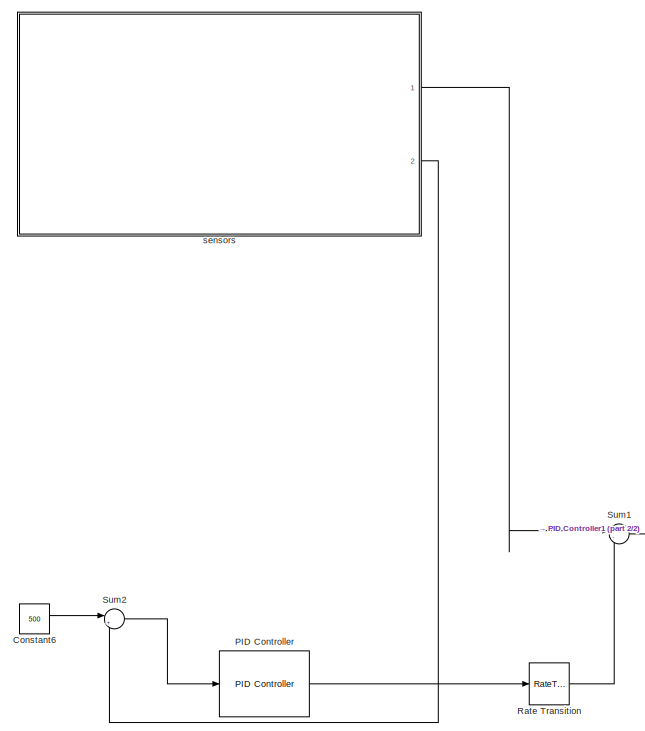
[diagram: root canvas - part 1/2, left side, full height]
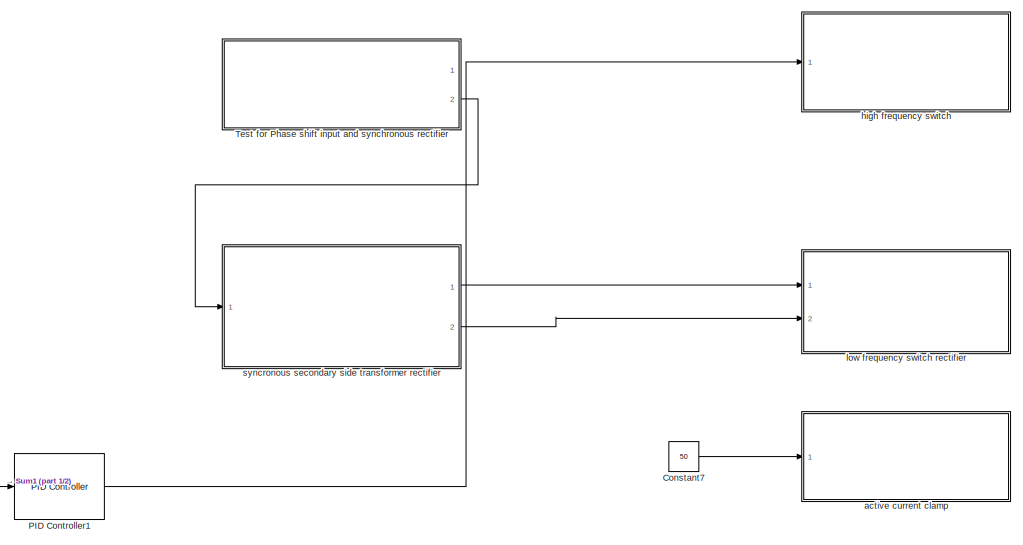
[diagram: root canvas - part 2/2, middle right region]
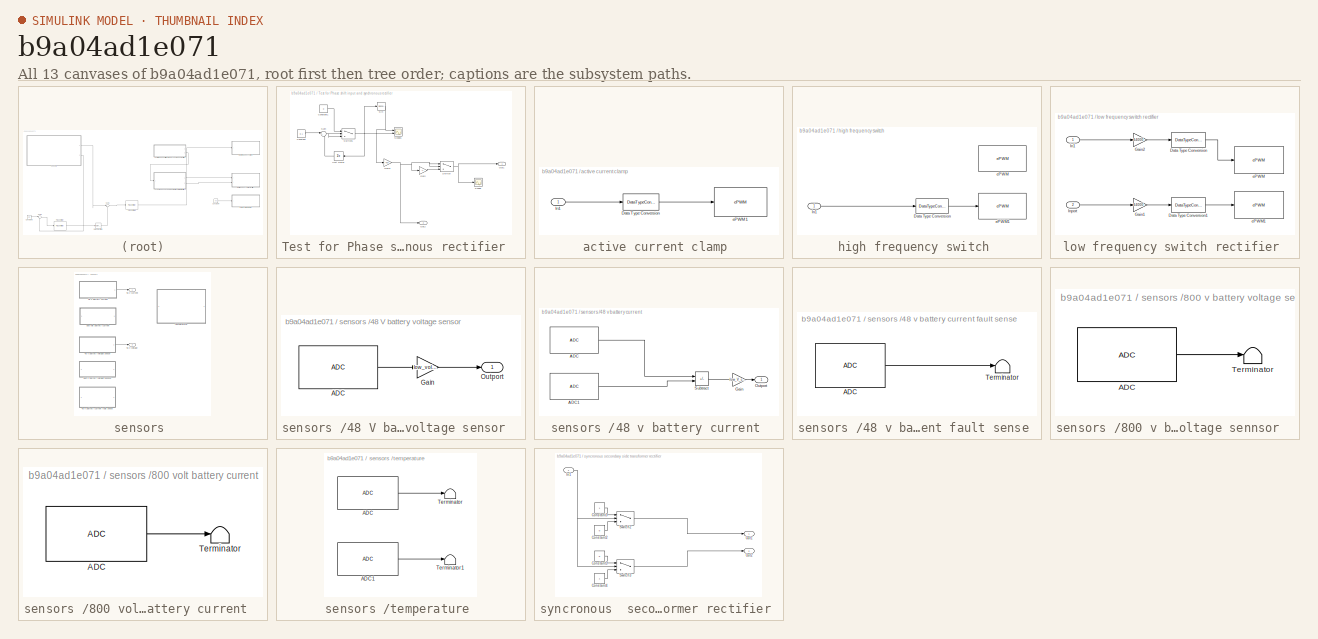
[diagram: thumbnail index - all 13 canvases of the model, root first then tree order]
MODEL slx_b9a04ad1e071
KIND model
CONFIG AbsTol = auto
CONFIG EnableMultiTasking = on
CONFIG FixedStep = auto
CONFIG MaxStep = auto
CONFIG MinStep = auto
CONFIG RelTol = 1e-3
CONFIG SampleTimeConstraint = Unconstrained
CONFIG SolverName = FixedStepDiscrete
CONFIG StartTime = 0.0
CONFIG StopTime = Inf
BLOCK [Constant] Constant6
  Value = 500
BLOCK [Constant] Constant7
  Value = 50
BLOCK [Reference] PID Controller  REF=pid_lib/PID Controller
  Ports = [1, 1]
  SourceBlock = pid_lib/PID Controller
  SourceProductBaseCode = SL
  SourceType = PID 1dof
BLOCK [Reference] PID Controller1  REF=pid_lib/PID Controller
  Ports = [1, 1]
  SourceBlock = pid_lib/PID Controller
  SourceProductBaseCode = SL
  SourceType = PID 1dof
BLOCK [RateTransition] Rate Transition
  OutPortSampleTime = Ts_current
BLOCK [Sum] Sum1
  Inputs = |-+
  Ports = [2, 1]
BLOCK [Sum] Sum2
  Inputs = |+-
  Ports = [2, 1]
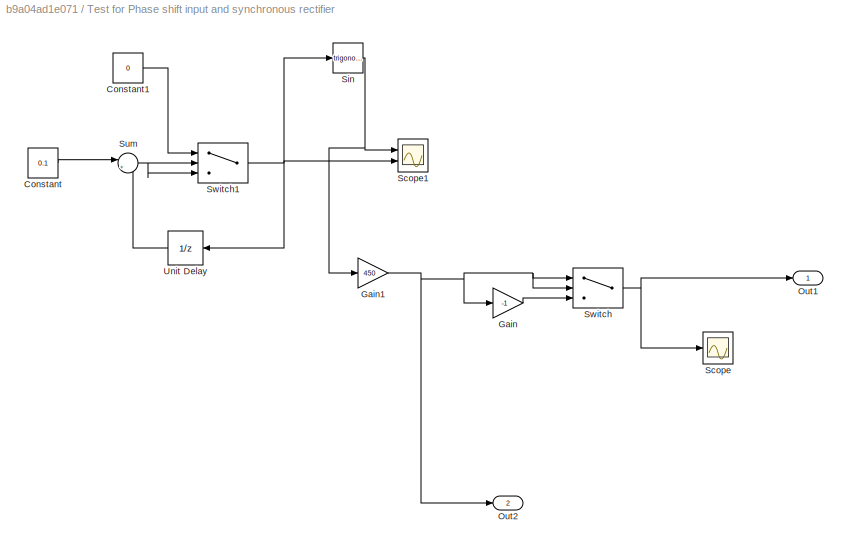
BLOCK [SubSystem] Test for Phase shift input  and synchronous rectifier  
  Ports = [0, 2]
  RequestExecContextInheritance = off
BLOCK [Constant] Test for Phase shift input  and synchronous rectifier  /Constant
  Value = 0.1
BLOCK [Constant] Test for Phase shift input  and synchronous rectifier  /Constant1
  Value = 0
BLOCK [Gain] Test for Phase shift input  and synchronous rectifier  /Gain
  Gain = -1
BLOCK [Gain] Test for Phase shift input  and synchronous rectifier  /Gain1
  Gain = 450
BLOCK [Outport] Test for Phase shift input  and synchronous rectifier  /Out1
BLOCK [Outport] Test for Phase shift input  and synchronous rectifier  /Out2
  Port = 2
BLOCK [Scope] Test for Phase shift input  and synchronous rectifier  /Scope
  Floating = off
  NumInputPorts = 1
  Ports = [1]
  ScopeSpecificationString = Simulink.scopes.TimeScopeBlockCfg('CurrentConfiguration', extmgr.ConfigurationSet(extmgr.Configuration('Core','General UI',true),extmgr.Configuration('Core','Source UI',true),extmgr.Configuration('Sources','WiredSimulink',true),extmgr.Configuration('Visuals','Time Domain',true,'SerializedDisplays',{struct('MinYLimReal','17.50261','MaxYLimReal','477.51741','YLabelReal','','MinYLimMag','17.50261','M...<+1489ch>
BLOCK [Scope] Test for Phase shift input  and synchronous rectifier  /Scope1
  Floating = off
  NumInputPorts = 2
  Ports = [2]
  ScopeSpecificationString = Simulink.scopes.TimeScopeBlockCfg('CurrentConfiguration', extmgr.ConfigurationSet(extmgr.Configuration('Core','General UI',true),extmgr.Configuration('Core','Source UI',true),extmgr.Configuration('Sources','WiredSimulink',true,'DataLoggingVariableName','ScopeData1'),extmgr.Configuration('Visuals','Time Domain',true,'SerializedDisplays',{struct('MinYLimReal','-1.09502','MaxYLimReal','1.01006','YLab...<+2050ch>
BLOCK [Trigonometry] Test for Phase shift input  and synchronous rectifier  /Sin
  Ports = [1, 1]
BLOCK [Sum] Test for Phase shift input  and synchronous rectifier  /Sum
  Inputs = |++
  Ports = [2, 1]
BLOCK [Switch] Test for Phase shift input  and synchronous rectifier  /Switch
  Criteria = u2 > Threshold
  InputSameDT = off
  SaturateOnIntegerOverflow = off
BLOCK [Switch] Test for Phase shift input  and synchronous rectifier  /Switch1
  Criteria = u2 > Threshold
  InputSameDT = off
  SaturateOnIntegerOverflow = off
  Threshold = 6.284
BLOCK [UnitDelay] Test for Phase shift input  and synchronous rectifier  /Unit Delay
  HasFrameUpgradeWarning = on
  NameLocation = top
  SampleTime = -1
BLOCK [SubSystem] active current clamp 
  Ports = [1]
  RequestExecContextInheritance = off
BLOCK [DataTypeConversion] active current clamp /Data Type Conversion
  OutDataTypeStr = uint16
  RndMeth = Floor
  SaturateOnIntegerOverflow = off
BLOCK [Inport] active current clamp /In1
BLOCK [Reference] active current clamp /ePWM1  REF=c2802xlib/ePWM
  Ports = [1]
  SourceBlock = c2802xlib/ePWM
  SourceProductBaseCode = TIC2000
  SourceType = C2802x/03x/05x/06x/M3x/37x/07x/004x/38x/002x ePWM
  UserDataPersistent = on
BLOCK [SubSystem] high frequency switch 
  Ports = [1]
  RequestExecContextInheritance = off
BLOCK [DataTypeConversion] high frequency switch /Data Type Conversion
  OutDataTypeStr = uint16
  RndMeth = Floor
  SaturateOnIntegerOverflow = off
BLOCK [Inport] high frequency switch /In1
BLOCK [Reference] high frequency switch /ePWM  REF=c2802xlib/ePWM
  Ports = []
  SourceBlock = c2802xlib/ePWM
  SourceProductBaseCode = TIC2000
  SourceType = C2802x/03x/05x/06x/M3x/37x/07x/004x/38x/002x ePWM
  UserDataPersistent = on
BLOCK [Reference] high frequency switch /ePWM1  REF=c2802xlib/ePWM
  Ports = [1]
  SourceBlock = c2802xlib/ePWM
  SourceProductBaseCode = TIC2000
  SourceType = C2802x/03x/05x/06x/M3x/37x/07x/004x/38x/002x ePWM
  UserDataPersistent = on
BLOCK [SubSystem] low frequency switch rectifier 
  Ports = [2]
  RequestExecContextInheritance = off
BLOCK [DataTypeConversion] low frequency switch rectifier /Data Type Conversion
  OutDataTypeStr = uint16
  RndMeth = Floor
  SaturateOnIntegerOverflow = off
BLOCK [DataTypeConversion] low frequency switch rectifier /Data Type Conversion1
  OutDataTypeStr = uint16
  RndMeth = Floor
  SaturateOnIntegerOverflow = off
BLOCK [Gain] low frequency switch rectifier /Gain1
  Gain = 64000
BLOCK [Gain] low frequency switch rectifier /Gain2
  Gain = 64000
BLOCK [Inport] low frequency switch rectifier /In1
BLOCK [Inport] low frequency switch rectifier /Inport
  Port = 2
BLOCK [Reference] low frequency switch rectifier /ePWM  REF=c2802xlib/ePWM
  Ports = [1]
  SourceBlock = c2802xlib/ePWM
  SourceProductBaseCode = TIC2000
  SourceType = C2802x/03x/05x/06x/M3x/37x/07x/004x/38x/002x ePWM
  UserDataPersistent = on
BLOCK [Reference] low frequency switch rectifier /ePWM1  REF=c2802xlib/ePWM
  Ports = [1]
  SourceBlock = c2802xlib/ePWM
  SourceProductBaseCode = TIC2000
  SourceType = C2802x/03x/05x/06x/M3x/37x/07x/004x/38x/002x ePWM
  UserDataPersistent = on
BLOCK [SubSystem] sensors 
  Ports = [0, 2]
  RequestExecContextInheritance = off
BLOCK [SubSystem] sensors /48 V battery voltage sensor  
  Ports = [0, 1]
  RequestExecContextInheritance = off
BLOCK [Reference] sensors /48 V battery voltage sensor  /ADC  REF=c2802xlib/ADC
  Ports = [0, 1]
  SourceBlock = c2802xlib/ADC
  SourceProductBaseCode = TIC2000
  SourceType = C2802x/03x/05x/06x/M3x/37x/07x/004x/38x/002x ADC
  UserDataPersistent = on
BLOCK [Gain] sensors /48 V battery voltage sensor  /Gain
  Gain = low_voltage_gain
BLOCK [Outport] sensors /48 V battery voltage sensor  /Outport
BLOCK [SubSystem] sensors /48 v battery current 
  Ports = [0, 1]
  RequestExecContextInheritance = off
BLOCK [Reference] sensors /48 v battery current /ADC  REF=c2802xlib/ADC
  Ports = [0, 1]
  SourceBlock = c2802xlib/ADC
  SourceProductBaseCode = TIC2000
  SourceType = C2802x/03x/05x/06x/M3x/37x/07x/004x/38x/002x ADC
  UserDataPersistent = on
BLOCK [Reference] sensors /48 v battery current /ADC1  REF=c2802xlib/ADC
  Ports = [0, 1]
  SourceBlock = c2802xlib/ADC
  SourceProductBaseCode = TIC2000
  SourceType = C2802x/03x/05x/06x/M3x/37x/07x/004x/38x/002x ADC
  UserDataPersistent = on
BLOCK [Gain] sensors /48 v battery current /Gain
  Gain = low_V_current_gain
BLOCK [Outport] sensors /48 v battery current /Outport
BLOCK [Sum] sensors /48 v battery current /Subtract
  IconShape = rectangular
  Inputs = +-
  Ports = [2, 1]
BLOCK [SubSystem] sensors /48 v battery current fault sense 
  Ports = []
  RequestExecContextInheritance = off
BLOCK [Reference] sensors /48 v battery current fault sense /ADC  REF=c2802xlib/ADC
  Ports = [0, 1]
  SourceBlock = c2802xlib/ADC
  SourceProductBaseCode = TIC2000
  SourceType = C2802x/03x/05x/06x/M3x/37x/07x/004x/38x/002x ADC
  UserDataPersistent = on
BLOCK [Terminator] sensors /48 v battery current fault sense /Terminator
BLOCK [Outport] sensors /48 v current 
BLOCK [Outport] sensors /48 v voltage
  Port = 2
BLOCK [SubSystem] sensors /800 v battery voltage sennsor  
  Ports = []
  RequestExecContextInheritance = off
BLOCK [Reference] sensors /800 v battery voltage sennsor  /ADC  REF=c2802xlib/ADC
  Ports = [0, 1]
  SourceBlock = c2802xlib/ADC
  SourceProductBaseCode = TIC2000
  SourceType = C2802x/03x/05x/06x/M3x/37x/07x/004x/38x/002x ADC
  UserDataPersistent = on
BLOCK [Terminator] sensors /800 v battery voltage sennsor  /Terminator
BLOCK [SubSystem] sensors /800 volt battery current  
  Ports = []
  RequestExecContextInheritance = off
BLOCK [Reference] sensors /800 volt battery current  /ADC  REF=c2802xlib/ADC
  Ports = [0, 1]
  SourceBlock = c2802xlib/ADC
  SourceProductBaseCode = TIC2000
  SourceType = C2802x/03x/05x/06x/M3x/37x/07x/004x/38x/002x ADC
  UserDataPersistent = on
BLOCK [Terminator] sensors /800 volt battery current  /Terminator
BLOCK [SubSystem] sensors /temperature 
  Ports = []
  RequestExecContextInheritance = off
BLOCK [Reference] sensors /temperature /ADC  REF=c2802xlib/ADC
  Ports = [0, 1]
  SourceBlock = c2802xlib/ADC
  SourceProductBaseCode = TIC2000
  SourceType = C2802x/03x/05x/06x/M3x/37x/07x/004x/38x/002x ADC
  UserDataPersistent = on
BLOCK [Reference] sensors /temperature /ADC1  REF=c2802xlib/ADC
  Ports = [0, 1]
  SourceBlock = c2802xlib/ADC
  SourceProductBaseCode = TIC2000
  SourceType = C2802x/03x/05x/06x/M3x/37x/07x/004x/38x/002x ADC
  UserDataPersistent = on
BLOCK [Terminator] sensors /temperature /Terminator
BLOCK [Terminator] sensors /temperature /Terminator1
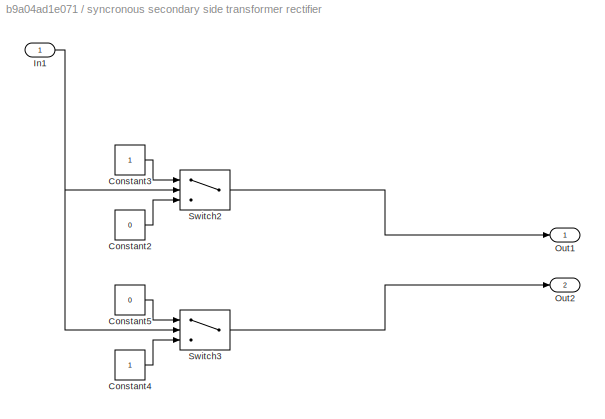
BLOCK [SubSystem] syncronous  secondary side transformer rectifier 
  Ports = [1, 2]
  RequestExecContextInheritance = off
BLOCK [Constant] syncronous  secondary side transformer rectifier /Constant2
  Value = 0
BLOCK [Constant] syncronous  secondary side transformer rectifier /Constant3
BLOCK [Constant] syncronous  secondary side transformer rectifier /Constant4
BLOCK [Constant] syncronous  secondary side transformer rectifier /Constant5
  Value = 0
BLOCK [Inport] syncronous  secondary side transformer rectifier /In1
BLOCK [Outport] syncronous  secondary side transformer rectifier /Out1
BLOCK [Outport] syncronous  secondary side transformer rectifier /Out2
  Port = 2
BLOCK [Switch] syncronous  secondary side transformer rectifier /Switch2
  Criteria = u2 > Threshold
  InputSameDT = off
  SaturateOnIntegerOverflow = off
BLOCK [Switch] syncronous  secondary side transformer rectifier /Switch3
  Criteria = u2 > Threshold
  InputSameDT = off
  SaturateOnIntegerOverflow = off
LINE Constant6:1 -> Sum2:1
LINE Constant7:1 -> active current clamp :1
LINE PID Controller1:1 -> high frequency switch :1
LINE PID Controller:1 -> Rate Transition:1
LINE Rate Transition:1 -> Sum1:2
LINE Sum1:1 -> PID Controller1:1
LINE Sum2:1 -> PID Controller:1
LINE Test for Phase shift input  and synchronous rectifier  /Constant1:1 -> Test for Phase shift input  and synchronous rectifier  /Switch1:1
LINE Test for Phase shift input  and synchronous rectifier  /Constant:1 -> Test for Phase shift input  and synchronous rectifier  /Sum:1
NET Test for Phase shift input  and synchronous rectifier  /Gain1:1 -> Test for Phase shift input  and synchronous rectifier  /Gain:1, Test for Phase shift input  and synchronous rectifier  /Out2:1, Test for Phase shift input  and synchronous rectifier  /Switch:1, Test for Phase shift input  and synchronous rectifier  /Switch:2
LINE Test for Phase shift input  and synchronous rectifier  /Gain:1 -> Test for Phase shift input  and synchronous rectifier  /Switch:3
NET Test for Phase shift input  and synchronous rectifier  /Sin:1 -> Test for Phase shift input  and synchronous rectifier  /Gain1:1, Test for Phase shift input  and synchronous rectifier  /Scope1:1
NET Test for Phase shift input  and synchronous rectifier  /Sum:1 -> Test for Phase shift input  and synchronous rectifier  /Switch1:2, Test for Phase shift input  and synchronous rectifier  /Switch1:3
NET Test for Phase shift input  and synchronous rectifier  /Switch1:1 -> Test for Phase shift input  and synchronous rectifier  /Scope1:2, Test for Phase shift input  and synchronous rectifier  /Sin:1, Test for Phase shift input  and synchronous rectifier  /Unit Delay:1
NET Test for Phase shift input  and synchronous rectifier  /Switch:1 -> Test for Phase shift input  and synchronous rectifier  /Out1:1, Test for Phase shift input  and synchronous rectifier  /Scope:1
LINE Test for Phase shift input  and synchronous rectifier  /Unit Delay:1 -> Test for Phase shift input  and synchronous rectifier  /Sum:2
LINE Test for Phase shift input  and synchronous rectifier  :2 -> syncronous  secondary side transformer rectifier :1
LINE active current clamp /Data Type Conversion:1 -> active current clamp /ePWM1:1
LINE active current clamp /In1:1 -> active current clamp /Data Type Conversion:1
LINE high frequency switch /Data Type Conversion:1 -> high frequency switch /ePWM1:1
LINE high frequency switch /In1:1 -> high frequency switch /Data Type Conversion:1
LINE low frequency switch rectifier /Data Type Conversion1:1 -> low frequency switch rectifier /ePWM1:1
LINE low frequency switch rectifier /Data Type Conversion:1 -> low frequency switch rectifier /ePWM:1
LINE low frequency switch rectifier /Gain1:1 -> low frequency switch rectifier /Data Type Conversion1:1
LINE low frequency switch rectifier /Gain2:1 -> low frequency switch rectifier /Data Type Conversion:1
LINE low frequency switch rectifier /In1:1 -> low frequency switch rectifier /Gain2:1
LINE low frequency switch rectifier /Inport:1 -> low frequency switch rectifier /Gain1:1
LINE sensors /48 V battery voltage sensor  /ADC:1 -> sensors /48 V battery voltage sensor  /Gain:1
LINE sensors /48 V battery voltage sensor  /Gain:1 -> sensors /48 V battery voltage sensor  /Outport:1
LINE sensors /48 V battery voltage sensor  :1 -> sensors /48 v voltage:1
LINE sensors /48 v battery current /ADC1:1 -> sensors /48 v battery current /Subtract:2
LINE sensors /48 v battery current /ADC:1 -> sensors /48 v battery current /Subtract:1
LINE sensors /48 v battery current /Gain:1 -> sensors /48 v battery current /Outport:1
LINE sensors /48 v battery current /Subtract:1 -> sensors /48 v battery current /Gain:1
LINE sensors /48 v battery current :1 -> sensors /48 v current :1
LINE sensors /48 v battery current fault sense /ADC:1 -> sensors /48 v battery current fault sense /Terminator:1
LINE sensors /800 v battery voltage sennsor  /ADC:1 -> sensors /800 v battery voltage sennsor  /Terminator:1
LINE sensors /800 volt battery current  /ADC:1 -> sensors /800 volt battery current  /Terminator:1
LINE sensors /temperature /ADC1:1 -> sensors /temperature /Terminator1:1
LINE sensors /temperature /ADC:1 -> sensors /temperature /Terminator:1
LINE sensors :1 -> Sum1:1
LINE sensors :2 -> Sum2:2
LINE syncronous  secondary side transformer rectifier /Constant2:1 -> syncronous  secondary side transformer rectifier /Switch2:3
LINE syncronous  secondary side transformer rectifier /Constant3:1 -> syncronous  secondary side transformer rectifier /Switch2:1
LINE syncronous  secondary side transformer rectifier /Constant4:1 -> syncronous  secondary side transformer rectifier /Switch3:3
LINE syncronous  secondary side transformer rectifier /Constant5:1 -> syncronous  secondary side transformer rectifier /Switch3:1
NET syncronous  secondary side transformer rectifier /In1:1 -> syncronous  secondary side transformer rectifier /Switch2:2, syncronous  secondary side transformer rectifier /Switch3:2
LINE syncronous  secondary side transformer rectifier /Switch2:1 -> syncronous  secondary side transformer rectifier /Out1:1
LINE syncronous  secondary side transformer rectifier /Switch3:1 -> syncronous  secondary side transformer rectifier /Out2:1
LINE syncronous  secondary side transformer rectifier :1 -> low frequency switch rectifier :1
LINE syncronous  secondary side transformer rectifier :2 -> low frequency switch rectifier :2
note: NET lines group one-source signal fan-out (src -> all destinations, sorted); 1:1 wires keep LINE
